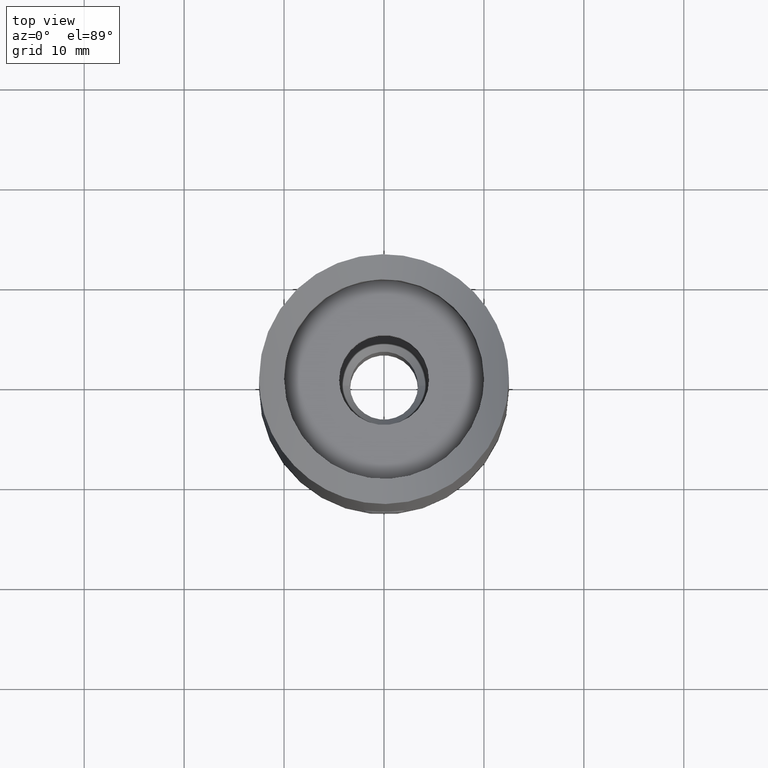
[diagram: clean part render]
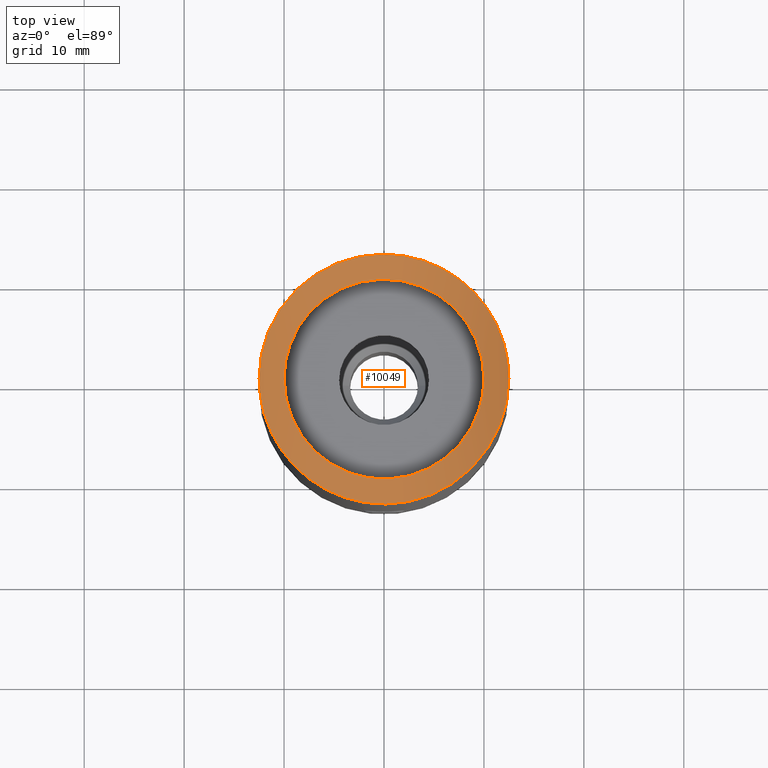
[diagram: same view with one face highlighted and labeled with its STEP entity id]
A machine part, top view. The second image highlights one B-rep face of the part: STEP entity #10049.
In plain terms, the highlighted cylindrical surface (partial cylindrical patch) has radius 21.2 mm, axis along (0, 1, 0).
Its self-contained STEP definition (entity closure, byte-faithful):
#54 = VERTEX_POINT ( 'NONE', #7113 ) ;
#113 = CARTESIAN_POINT ( 'NONE',  ( -9.478500886553067800, -3.254224513780860800, 7.234836316926856800 ) ) ;
#257 = ORIENTED_EDGE ( 'NONE', *, *, #8119, .F. ) ;
#331 = CARTESIAN_POINT ( 'NONE',  ( 10.00000000000000000, 6.541910431243391300E-016, 7.506685687123311200 ) ) ;
#597 = CARTESIAN_POINT ( 'NONE',  ( -0.8254145584992953500, -12.47977324621854600, 5.011946741441865200 ) ) ;
#645 = CARTESIAN_POINT ( 'NONE',  ( -7.657783215492891300, -9.887831381975154000, 6.428566676989436100 ) ) ;
#746 = CARTESIAN_POINT ( 'NONE',  ( -8.570666225862408900, -9.107812243117958700, 6.807232788485992900 ) ) ;
#764 = CARTESIAN_POINT ( 'NONE',  ( -0.8589641378155502500, 12.49923279307553300, 5.000452362454509200 ) ) ;
#810 = CARTESIAN_POINT ( 'NONE',  ( -4.161741894151727900, -9.098681388723358400, 5.410260176134897000 ) ) ;
#873 = CARTESIAN_POINT ( 'NONE',  ( -8.963013060748673800, 4.446319105920042400, 6.987167958370704000 ) ) ;
#899 = CARTESIAN_POINT ( 'NONE',  ( -12.41450283951434500, -1.679989969878693500, 9.013914764371319800 ) ) ;
#906 = CARTESIAN_POINT ( 'NONE',  ( -5.313340233650741600, -8.477801443946033200, 5.674750555498474300 ) ) ;
#926 = CARTESIAN_POINT ( 'NONE',  ( -10.00000000000000000, 1.224529867678464600E-015, 7.506685687123316500 ) ) ;
#1017 = CARTESIAN_POINT ( 'NONE',  ( 5.846561943196763700, 8.119340982846644300, 5.820201918539419600 ) ) ;
#1081 = CARTESIAN_POINT ( 'NONE',  ( -8.480909711439105400, -5.308310892497493300, 6.769293393294548300 ) ) ;
#1176 = CARTESIAN_POINT ( 'NONE',  ( -10.00000000000000000, 1.224529867678464600E-015, 7.506685687123316500 ) ) ;
#1338 = CARTESIAN_POINT ( 'NONE',  ( -0.6666569879782894300, -9.983277987278887300, 5.007902766920767400 ) ) ;
#1379 = CARTESIAN_POINT ( 'NONE',  ( -1.660045829272655900, -9.866830388938726800, 5.062570201656885000 ) ) ;
#1701 = CARTESIAN_POINT ( 'NONE',  ( 4.111227917153251500, -11.81195145108149300, 5.398513399234704300 ) ) ;
#1754 = CARTESIAN_POINT ( 'NONE',  ( -8.275886382900747400, -9.376596279630220500, 6.679218150928094600 ) ) ;
#1779 = CARTESIAN_POINT ( 'NONE',  ( 9.933031465423265900, 1.329849263782103100, 7.470440274762734300 ) ) ;
#1805 = CARTESIAN_POINT ( 'NONE',  ( -7.332818909338673300, -10.13134071192462400, 6.305368122057317700 ) ) ;
#1850 = CARTESIAN_POINT ( 'NONE',  ( 12.08501816055483500, -3.299599365158000000, 8.780668973257210300 ) ) ;
#1872 = CARTESIAN_POINT ( 'NONE',  ( 5.616086685430327700, 11.19739653768655300, 5.742685658978530200 ) ) ;
#1904 = CARTESIAN_POINT ( 'NONE',  ( -2.072732177878319400, -12.33395623446778800, 5.097583544234136200 ) ) ;
#1926 = CARTESIAN_POINT ( 'NONE',  ( 3.300318739173965000, 12.08511028713730100, 5.242380849323621000 ) ) ;
#1976 = CARTESIAN_POINT ( 'NONE',  ( -9.352466918338750500, 3.554810328995386300, 7.173947760992679600 ) ) ;
#2002 = CARTESIAN_POINT ( 'NONE',  ( -12.50000000000000000, 1.530791408019393000E-015, 9.077208171562666900 ) ) ;
#2025 = CARTESIAN_POINT ( 'NONE',  ( -5.622003884004051600, 11.19441611945893600, 5.744320868537759100 ) ) ;
#2069 = CARTESIAN_POINT ( 'NONE',  ( 7.677584592285628100, 9.897763553005122000, 6.426185435189047700 ) ) ;
#2074 = CARTESIAN_POINT ( 'NONE',  ( 6.607573212314526300, 7.512946934789661100, 6.054322668262596400 ) ) ;
#2124 = CARTESIAN_POINT ( 'NONE',  ( -7.943749023347947100, 6.108976910668620700, 6.540607031193800000 ) ) ;
#2281 = CARTESIAN_POINT ( 'NONE',  ( -9.097912455568701900, -4.163649602383443900, 7.050904927481713700 ) ) ;
#2312 = AXIS2_PLACEMENT_3D ( 'NONE', #7361, #5122, #9564 ) ;
#2449 = CARTESIAN_POINT ( 'NONE',  ( -1.327488730314914800, -9.917058262498736500, 5.039017264153548200 ) ) ;
#2498 = CARTESIAN_POINT ( 'NONE',  ( 7.534058560074438300, -6.607572267528164300, 6.377911961759056500 ) ) ;
#2590 = CARTESIAN_POINT ( 'NONE',  ( 5.311949827256865000, -8.478661680143668300, 5.674393634318701800 ) ) ;
#2629 = CARTESIAN_POINT ( 'NONE',  ( -5.033184300132312200, -8.647222391918639100, 5.604013365143524400 ) ) ;
#2860 = CARTESIAN_POINT ( 'NONE',  ( -4.476566234661104800, -11.67815006083307600, 5.474372074799599200 ) ) ;
#2958 = CARTESIAN_POINT ( 'NONE',  ( 12.50000000000000000, -2.044758162488406600E-017, 9.077208171562666900 ) ) ;
#3025 = CARTESIAN_POINT ( 'NONE',  ( 10.15490571586093300, 7.299856861454050400, 7.588624967614351600 ) ) ;
#3030 = CARTESIAN_POINT ( 'NONE',  ( 8.664294861225840800, 5.035088674796968500, 6.847353426485149400 ) ) ;
#3079 = CARTESIAN_POINT ( 'NONE',  ( 9.350011820299741300, 3.561452253127825900, 7.172732469166993100 ) ) ;
#3125 = CARTESIAN_POINT ( 'NONE',  ( -11.67712929274374800, 4.478832813254037100, 8.504802613424473600 ) ) ;
#3168 = CARTESIAN_POINT ( 'NONE',  ( -4.097214065288559600, 11.81672929809248600, 5.395795324141353400 ) ) ;
#3173 = CARTESIAN_POINT ( 'NONE',  ( 8.121024800386321000, 5.844184035675440600, 6.616137002574778800 ) ) ;
#3219 = CARTESIAN_POINT ( 'NONE',  ( 6.845595530139162200, 7.296640947458426400, 6.134212485046475600 ) ) ;
#3593 = CARTESIAN_POINT ( 'NONE',  ( 9.477245350095849100, -3.257122375513097400, 7.234233341201583100 ) ) ;
#3642 = CARTESIAN_POINT ( 'NONE',  ( 3.252533270004059200, -9.478951223627866800, 5.241967308880727000 ) ) ;
#3877 = CARTESIAN_POINT ( 'NONE',  ( -5.612463922427940200, -11.19935645945867400, 5.741616845213260800 ) ) ;
#3921 = CARTESIAN_POINT ( 'NONE',  ( -0.3997525628056106100, -12.50069499433881900, 4.999590215990475700 ) ) ;
#3968 = CARTESIAN_POINT ( 'NONE',  ( -6.325162137555068400, -10.81200791003522400, 5.953055371299342400 ) ) ;
#3994 = CARTESIAN_POINT ( 'NONE',  ( -6.614303266728305700, -7.527731097992622200, 6.052421245451372800 ) ) ;
#4034 = CARTESIAN_POINT ( 'NONE',  ( 1.669804141140359500, 12.41586680673746700, 5.049925334052112200 ) ) ;
#4041 = CARTESIAN_POINT ( 'NONE',  ( 10.00000000000000200, 0.6717252304569595300, 7.506685687123317400 ) ) ;
#4065 = CARTESIAN_POINT ( 'NONE',  ( 4.497950466487383300, -11.66982766874527000, 5.479057644836522900 ) ) ;
#4136 = CARTESIAN_POINT ( 'NONE',  ( -12.41440993766445000, 1.679475638683217000, 9.013857359421148600 ) ) ;
#4190 = CARTESIAN_POINT ( 'NONE',  ( -9.935038555233292700, 1.318941575521353400, 7.471491914981994500 ) ) ;
#4243 = CARTESIAN_POINT ( 'NONE',  ( -4.489506994984119500, 11.67314426038795900, 5.477192250028883400 ) ) ;
#4294 = CARTESIAN_POINT ( 'NONE',  ( 0.6705984451288042900, 9.999594512627529900, 5.000191267601144000 ) ) ;
#4344 = CARTESIAN_POINT ( 'NONE',  ( 5.035849835764238100, 8.663957215794193100, 5.599173753982681100 ) ) ;
#4358 = CARTESIAN_POINT ( 'NONE',  ( -8.121278425518974900, -5.843700094990300200, 6.616256090710106900 ) ) ;
#4548 = CARTESIAN_POINT ( 'NONE',  ( -9.867340187558424300, -1.656708844293380400, 7.436177374476308400 ) ) ;
#4646 = EDGE_CURVE ( 'NONE', #4847, #54, #9667, .T. ) ;
#4847 = VERTEX_POINT ( 'NONE', #9976 ) ;
#4991 = CARTESIAN_POINT ( 'NONE',  ( 1.690154089136584900, -12.41298781756334400, 5.051619729781943000 ) ) ;
#5043 = CARTESIAN_POINT ( 'NONE',  ( 9.921695963143252000, -7.646057704508287100, 7.457881125248741600 ) ) ;
#5087 = CARTESIAN_POINT ( 'NONE',  ( 2.909921039371525800, -12.16365822421952600, 5.196666650997594900 ) ) ;
#5122 = DIRECTION ( 'NONE',  ( -0.0000000000000000000, 1.000000000000000000, -0.0000000000000000000 ) ) ;
#5135 = CARTESIAN_POINT ( 'NONE',  ( -9.400507852522070000, -8.248663482543523900, 7.196003224771099700 ) ) ;
#5157 = CARTESIAN_POINT ( 'NONE',  ( -9.917886729184006700, 7.650612990462789800, 7.455915680248231100 ) ) ;
#5205 = CARTESIAN_POINT ( 'NONE',  ( 10.82385150507189300, 6.303516461398687400, 7.964161621337957800 ) ) ;
#5255 = CARTESIAN_POINT ( 'NONE',  ( -9.412360545666029300, 8.263981835864756300, 7.193905633885567100 ) ) ;
#5260 = CARTESIAN_POINT ( 'NONE',  ( -3.562254835665961600, 9.349811369862591100, 5.299140847941979300 ) ) ;
#5299 = CARTESIAN_POINT ( 'NONE',  ( -3.260343542439275900, -9.475998860987058200, 5.243290569952678800 ) ) ;
#5307 = CARTESIAN_POINT ( 'NONE',  ( 12.06465259715028900, 3.296395907968563900, 8.767095655883373700 ) ) ;
#5311 = CARTESIAN_POINT ( 'NONE',  ( -9.102309287502441400, 4.153706726334887000, 7.053008933654798100 ) ) ;
#5355 = CARTESIAN_POINT ( 'NONE',  ( 9.136534688933110700, 8.540058506059825300, 7.067315992079076500 ) ) ;
#5407 = CARTESIAN_POINT ( 'NONE',  ( -7.535515665379778100, 6.605298540180346100, 6.378589609123567400 ) ) ;
#5456 = CARTESIAN_POINT ( 'NONE',  ( -9.463329866915753300, 3.248527421069302700, 7.229048087174322600 ) ) ;
#5470 = CARTESIAN_POINT ( 'NONE',  ( -7.928678791465395100, -6.102531995524574700, 6.537222039249016300 ) ) ;
#5612 = CARTESIAN_POINT ( 'NONE',  ( -9.917343046521946100, -1.325803575734078000, 7.462665128519613100 ) ) ;
#5771 = CARTESIAN_POINT ( 'NONE',  ( 10.00000000000000000, -0.6707880294498723700, 7.506685687123315600 ) ) ;
#5799 = EDGE_CURVE ( 'NONE', #54, #4847, #10134, .T. ) ;
#5858 = CARTESIAN_POINT ( 'NONE',  ( 4.457566792296339600, -8.957528024720582800, 5.471817634834603300 ) ) ;
#5971 = CARTESIAN_POINT ( 'NONE',  ( -12.50000000000000000, 1.530791408019393000E-015, 9.077208171562666900 ) ) ;
#6141 = CARTESIAN_POINT ( 'NONE',  ( 12.41455994250099000, -1.677415078488688100, 9.013974898359009600 ) ) ;
#6162 = CARTESIAN_POINT ( 'NONE',  ( 10.00000000000000000, 6.541910431243391300E-016, 7.506685687123311200 ) ) ;
#6357 = CARTESIAN_POINT ( 'NONE',  ( 6.330762071407219700, 10.80890744331405900, 5.954741315298949900 ) ) ;
#6360 = CARTESIAN_POINT ( 'NONE',  ( 3.256384578239195800, 9.460734671739725600, 5.249152896575169300 ) ) ;
#6385 = CARTESIAN_POINT ( 'NONE',  ( -11.67547662238571400, -4.482977201973308300, 8.503719972888447400 ) ) ;
#6409 = CARTESIAN_POINT ( 'NONE',  ( -12.50000000000000500, 0.8471338255284911500, 9.077208171562492800 ) ) ;
#6411 = CARTESIAN_POINT ( 'NONE',  ( -3.249850724637522300, 9.462928728167646900, 5.248159784637767400 ) ) ;
#6438 = CARTESIAN_POINT ( 'NONE',  ( -12.06114128497305800, -3.309091052154643700, 8.764665499547451300 ) ) ;
#6460 = CARTESIAN_POINT ( 'NONE',  ( 11.67798937154660300, 4.476561059971743400, 8.505372729526113700 ) ) ;
#6514 = CARTESIAN_POINT ( 'NONE',  ( 7.925988879733638200, 6.105969849039951200, 6.536144706480203400 ) ) ;
#6560 = CARTESIAN_POINT ( 'NONE',  ( -2.300809935188174100, 9.737303294077429800, 5.122719851321512000 ) ) ;
#6576 = CARTESIAN_POINT ( 'NONE',  ( -8.956163715899565500, -4.460109451666560300, 6.983969486972087600 ) ) ;
#6947 = CARTESIAN_POINT ( 'NONE',  ( 9.098889911054369500, -4.161365014662666600, 7.051375415398915400 ) ) ;
#6987 = B_SPLINE_CURVE_WITH_KNOTS ( 'NONE', 3,
 ( #2958, #8371, #6141, #1850, #13906, #12910, #9626, #5043, #10610, #12962, #11809, #7232, #10749, #14097, #14046, #4065, #1701, #7422, #5087, #4991, #9481, #3921, #597, #13953, #1904, #7279, #10656, #8422, #2860, #3877, #3968, #1805, #645, #1754, #746, #9522, #5135, #9576, #11762, #12863, #13063, #6385, #13121, #6438, #7518, #899, #13219, #2002 ),
 .UNSPECIFIED., .F., .F.,
 ( 4, 2, 2, 2, 2, 2, 2, 2, 2, 2, 2, 2, 2, 2, 2, 2, 2, 2, 2, 2, 2, 2, 2, 4 ),
 ( 1.976632742456535400E-020, 0.002502947823133309100, 0.005005895646266618100, 0.007508843469399926300, 0.01001179129253323600, 0.01126326520409989000, 0.01251473911566654300, 0.01501768693879984200, 0.01626916085036649000, 0.01752063476193314200, 0.02002358258506644500, 0.02127505649663309300, 0.02252653040819974400, 0.02377800431976639600, 0.02502947823133304400, 0.02753242605446634300, 0.02878389996603299500, 0.03003537387759964300, 0.03128684778916628700, 0.03253832170073293200, 0.03504126952386622800, 0.03629274343543287300, 0.03754421734699951700, 0.04004716517013279900 ),
 .UNSPECIFIED. ) ;
#7113 = CARTESIAN_POINT ( 'NONE',  ( 10.00000000000000000, 6.541910431243391300E-016, 7.506685687123311200 ) ) ;
#7232 = CARTESIAN_POINT ( 'NONE',  ( 7.658181626422164700, -9.887565487340261000, 6.428706670570202100 ) ) ;
#7279 = CARTESIAN_POINT ( 'NONE',  ( -2.887341660598341100, -12.16905720300270800, 5.193537730289676800 ) ) ;
#7361 = CARTESIAN_POINT ( 'NONE',  ( 0.0000000000000000000, -12.50000000000000000, 26.19999999999999200 ) ) ;
#7396 = CARTESIAN_POINT ( 'NONE',  ( 12.47839444042782700, 0.8447536554562119500, 9.061377960056141500 ) ) ;
#7422 = CARTESIAN_POINT ( 'NONE',  ( 3.313708303092448600, -12.06000536283059100, 5.256662704558889800 ) ) ;
#7441 = CARTESIAN_POINT ( 'NONE',  ( -3.304356569119988300, 12.06248241720207800, 5.255231608921268300 ) ) ;
#7444 = CARTESIAN_POINT ( 'NONE',  ( 2.623699859661179400, 9.655347746035152700, 5.160555284920361500 ) ) ;
#7492 = CARTESIAN_POINT ( 'NONE',  ( 12.50000000000000400, 0.4234813879121445100, 9.077208171562670500 ) ) ;
#7496 = CARTESIAN_POINT ( 'NONE',  ( 7.299690919783572000, 6.842343147929482500, 6.294912227444076100 ) ) ;
#7518 = CARTESIAN_POINT ( 'NONE',  ( -12.16537212360689000, -2.902892153864682800, 8.837567200596009100 ) ) ;
#7543 = CARTESIAN_POINT ( 'NONE',  ( 12.39433659822115200, 1.674621401780844700, 9.000490892791585700 ) ) ;
#7547 = CARTESIAN_POINT ( 'NONE',  ( -6.626916684805027400, 7.516511185433398800, 6.056607001813697300 ) ) ;
#7641 = CARTESIAN_POINT ( 'NONE',  ( 9.656973254939389400, 2.617713629338934900, 7.326878716331544100 ) ) ;
#7710 = CARTESIAN_POINT ( 'NONE',  ( -10.00000000000000500, -0.3302339928304436900, 7.506685687123313900 ) ) ;
#7711 = FACE_BOUND ( 'NONE', #12032, .T. ) ;
#7859 = CARTESIAN_POINT ( 'NONE',  ( -8.647941348051487500, -5.031754690712050500, 6.843300704296791700 ) ) ;
#7926 = B_SPLINE_CURVE_WITH_KNOTS ( 'NONE', 3,
 ( #8537, #6409, #4136, #11829, #14116, #9852, #3125, #10922, #11876, #8584, #13144, #5157, #5255, #8682, #11925, #14212, #2025, #4243, #3168, #7441, #12022, #8728, #764, #9649, #4034, #1926, #13037, #1872, #6357, #2069, #12934, #5355, #9698, #14068, #3025, #5205, #11973, #6460, #12985, #5307, #14264, #10815, #7543, #7396, #7492, #10874 ),
 .UNSPECIFIED., .F., .F.,
 ( 4, 2, 2, 2, 2, 2, 2, 2, 2, 2, 2, 2, 2, 2, 2, 2, 2, 2, 2, 2, 2, 2, 4 ),
 ( 0.04004716517013279900, 0.04254536742155978100, 0.04379446854727327100, 0.04504356967298676200, 0.04629267079870024600, 0.04754177192441373700, 0.05003997417584071800, 0.05253817642726769200, 0.05503637867869467400, 0.05628547980440816400, 0.05753458093012164800, 0.06003278318154862300, 0.06253098543297559700, 0.06502918768440257800, 0.06752738993582954600, 0.07002559218725652700, 0.07127469331297001100, 0.07252379443868350900, 0.07502199669011047600, 0.07627109781582394600, 0.07752019894153744400, 0.07876930006725092700, 0.08001840119296441100 ),
 .UNSPECIFIED. ) ;
#7940 = CARTESIAN_POINT ( 'NONE',  ( 1.647510907723121600, -9.868951408880581900, 5.061579359753354300 ) ) ;
#8119 = EDGE_CURVE ( 'NONE', #13697, #9612, #6987, .T. ) ;
#8371 = CARTESIAN_POINT ( 'NONE',  ( 12.50000000000000000, -0.8485716618073886300, 9.077208171562670500 ) ) ;
#8422 = CARTESIAN_POINT ( 'NONE',  ( -4.084322186922481300, -11.82121978265570700, 5.393243481729315100 ) ) ;
#8537 = CARTESIAN_POINT ( 'NONE',  ( -12.50000000000000000, 1.530791408019393000E-015, 9.077208171562666900 ) ) ;
#8584 = CARTESIAN_POINT ( 'NONE',  ( -10.80199183774451300, 6.303179214469232700, 7.956988026750454200 ) ) ;
#8638 = CARTESIAN_POINT ( 'NONE',  ( -0.3261879860930312900, 10.00019997653164700, 4.999905671460922500 ) ) ;
#8682 = CARTESIAN_POINT ( 'NONE',  ( -8.285911549510649000, 9.393061088846344800, 6.676480238211571100 ) ) ;
#8685 = CARTESIAN_POINT ( 'NONE',  ( -5.045540049684615400, 8.658100728389458200, 5.601619553060958300 ) ) ;
#8728 = CARTESIAN_POINT ( 'NONE',  ( -1.687412625807631400, 12.41318755116838400, 5.051497986041627400 ) ) ;
#8782 = CARTESIAN_POINT ( 'NONE',  ( 3.564516780509356900, 9.348813364254597900, 5.299579758461828900 ) ) ;
#8942 = CARTESIAN_POINT ( 'NONE',  ( -9.983684591768959400, -0.6614304165228293000, 7.497929174541464000 ) ) ;
#9059 = CARTESIAN_POINT ( 'NONE',  ( 9.669333927575726400, -2.633854768632893300, 7.332944759282390200 ) ) ;
#9156 = CARTESIAN_POINT ( 'NONE',  ( -2.635645876970034600, -9.669216469222927700, 5.154332195155081600 ) ) ;
#9250 = CARTESIAN_POINT ( 'NONE',  ( 2.625120670453816800, -9.672162006149738600, 5.152976008807252500 ) ) ;
#9481 = CARTESIAN_POINT ( 'NONE',  ( 0.8630191910266018500, -12.49855622413039000, 5.000851282150399900 ) ) ;
#9514 = CARTESIAN_POINT ( 'NONE',  ( -4.456222113175145200, -8.958207620525794100, 5.471524558223444000 ) ) ;
#9522 = CARTESIAN_POINT ( 'NONE',  ( -9.132977711352266300, -8.543844657703626700, 7.065621050082285100 ) ) ;
#9564 = DIRECTION ( 'NONE',  ( 0.0000000000000000000, 0.0000000000000000000, 1.000000000000000000 ) ) ;
#9576 = CARTESIAN_POINT ( 'NONE',  ( -9.908645367881296900, -7.630776114337299600, 7.455929249711950000 ) ) ;
#9612 = VERTEX_POINT ( 'NONE', #5971 ) ;
#9626 = CARTESIAN_POINT ( 'NONE',  ( 10.82311573601574200, -6.305744600801085100, 7.963573911942920500 ) ) ;
#9649 = CARTESIAN_POINT ( 'NONE',  ( 0.8364876894773548600, 12.50075710310782800, 4.999553594983742000 ) ) ;
#9667 = B_SPLINE_CURVE_WITH_KNOTS ( 'NONE', 3,
 ( #1176, #7710, #8942, #5612, #4548, #13458, #113, #2281, #6576, #7859, #1081, #4358, #5470, #13262, #10348, #3994, #12077, #906, #2629, #9514, #810, #5299, #9156, #1379, #2449, #1338, #10324, #12396, #10370, #7940, #9250, #3642, #13623, #5858, #11484, #2590, #13578, #13528, #2498, #10282, #12444, #11438, #12486, #6947, #3593, #9059, #11392, #5771, #331 ),
 .UNSPECIFIED., .F., .F.,
 ( 4, 2, 2, 2, 2, 2, 2, 2, 2, 2, 2, 2, 2, 1, 2, 2, 2, 2, 2, 2, 2, 2, 2, 2, 4 ),
 ( 0.03174031370945279400, 0.03273081462048010200, 0.03372131553150740200, 0.03570231735356201000, 0.03669281826458931800, 0.03768331917561661800, 0.03867382008664391900, 0.03966432099767122600, 0.04164532281972582700, 0.04263582373075312800, 0.04362632464178042800, 0.04560732646383503000, 0.04659782737486233000, 0.04758832828588963100, 0.04857882919691693100, 0.04956933010794423200, 0.05155033192999883300, 0.05254083284102613300, 0.05353133375205342000, 0.05551233557410801400, 0.05749333739616260800, 0.05848383830718990900, 0.05947433921821720200, 0.06145534104027179600, 0.06343634286232639800 ),
 .UNSPECIFIED. ) ;
#9698 = CARTESIAN_POINT ( 'NONE',  ( 9.404630617369024400, 8.244042790606316700, 7.198028158581684500 ) ) ;
#9755 = CARTESIAN_POINT ( 'NONE',  ( 7.515763318024770700, 6.604352297271823600, 6.375726836184354900 ) ) ;
#9804 = CARTESIAN_POINT ( 'NONE',  ( -9.655830996760572700, 2.621539688331370000, 7.326299874937038000 ) ) ;
#9852 = CARTESIAN_POINT ( 'NONE',  ( -11.81777214489814500, 4.094131579675014600, 8.598799217440154400 ) ) ;
#9855 = CARTESIAN_POINT ( 'NONE',  ( -1.654134694578879500, 9.867757608033452100, 5.062135792944278700 ) ) ;
#9902 = CARTESIAN_POINT ( 'NONE',  ( -8.486879599133187600, 5.298920789186500000, 6.771886484226287800 ) ) ;
#9976 = CARTESIAN_POINT ( 'NONE',  ( -10.00000000000000000, 1.224529867678464600E-015, 7.506685687123316500 ) ) ;
#10049 = ADVANCED_FACE ( 'NONE', ( #14329, #7711 ), #10338, .F. ) ;
#10134 = B_SPLINE_CURVE_WITH_KNOTS ( 'NONE', 3,
 ( #6162, #4041, #1779, #14312, #7641, #13042, #3079, #13200, #3030, #3173, #6514, #9755, #7496, #3219, #2074, #11928, #1017, #4344, #10978, #8782, #6360, #7444, #10877, #12117, #4294, #8638, #10819, #12076, #9855, #6560, #10926, #6411, #5260, #14168, #8685, #11978, #7547, #5407, #2124, #9902, #11021, #873, #5311, #1976, #5456, #9804, #14218, #4190, #13094, #926 ),
 .UNSPECIFIED., .F., .F.,
 ( 4, 2, 2, 2, 2, 2, 2, 2, 2, 2, 2, 2, 2, 2, 2, 2, 2, 2, 2, 2, 2, 2, 2, 2, 4 ),
 ( 9.794418548640560900E-019, 0.001983769606840795700, 0.002975654410261193400, 0.003967539213681590600, 0.005951308820522385900, 0.006943193623942783100, 0.007935078427363181200, 0.008926963230783579300, 0.009918848034203975700, 0.01190261764104477500, 0.01289450244446517500, 0.01388638724788557500, 0.01587015685472637300, 0.01686204165814677100, 0.01785392646156717600, 0.01884581126498757400, 0.01983769606840797600, 0.02182146567524877900, 0.02380523528208957800, 0.02578900488893038100, 0.02678088969235078000, 0.02777277449577118500, 0.02876465929919158300, 0.02975654410261198400, 0.03174031370945279400 ),
 .UNSPECIFIED. ) ;
#10282 = CARTESIAN_POINT ( 'NONE',  ( 7.941764151823389500, -6.110875204756366600, 6.539873120546872100 ) ) ;
#10324 = CARTESIAN_POINT ( 'NONE',  ( -0.005900601720625625300, -10.01632632320056800, 4.992283919191242700 ) ) ;
#10338 = CYLINDRICAL_SURFACE ( 'NONE', #2312, 21.19999999999999900 ) ;
#10348 = CARTESIAN_POINT ( 'NONE',  ( -7.298273202315559900, -6.843912920350976300, 6.294380376182438400 ) ) ;
#10358 = EDGE_CURVE ( 'NONE', #9612, #13697, #7926, .T. ) ;
#10370 = CARTESIAN_POINT ( 'NONE',  ( 1.315239574759866600, -9.918683846070473800, 5.038254877941757700 ) ) ;
#10610 = CARTESIAN_POINT ( 'NONE',  ( 9.415575042610409900, -8.260170238301588700, 7.195545307325294200 ) ) ;
#10656 = CARTESIAN_POINT ( 'NONE',  ( -3.289639034843824900, -12.06653222333863700, 5.252898063034621100 ) ) ;
#10749 = CARTESIAN_POINT ( 'NONE',  ( 7.333175704000699300, -10.13097365662281600, 6.305543135158881500 ) ) ;
#10815 = CARTESIAN_POINT ( 'NONE',  ( 12.33187756241081000, 2.084699858219270000, 8.955435823175230700 ) ) ;
#10819 = CARTESIAN_POINT ( 'NONE',  ( -0.6626974303682187100, 9.983592460726143300, 5.007754707594720000 ) ) ;
#10874 = CARTESIAN_POINT ( 'NONE',  ( 12.50000000000000000, -2.044758162488406600E-017, 9.077208171562666900 ) ) ;
#10877 = CARTESIAN_POINT ( 'NONE',  ( 2.299476241532090600, 9.737646862723488900, 5.122561354893148800 ) ) ;
#10922 = CARTESIAN_POINT ( 'NONE',  ( -11.36141052027945600, 5.228158650827131400, 8.300455032068361700 ) ) ;
#10926 = CARTESIAN_POINT ( 'NONE',  ( -2.619930681521460200, 9.656319851311369700, 5.160106906960775700 ) ) ;
#10978 = CARTESIAN_POINT ( 'NONE',  ( 4.465734409724866800, 8.971152711585716600, 5.466678973509250000 ) ) ;
#11021 = CARTESIAN_POINT ( 'NONE',  ( -8.655806976530286100, 5.018203095119862000, 6.846821352241430100 ) ) ;
#11392 = CARTESIAN_POINT ( 'NONE',  ( 9.931136380216734900, -1.343778159799062600, 7.469428138554000900 ) ) ;
#11438 = CARTESIAN_POINT ( 'NONE',  ( 8.647454051136154600, -5.032659886040782700, 6.843078212451467300 ) ) ;
#11484 = CARTESIAN_POINT ( 'NONE',  ( 5.033982531416591600, -8.646746781005580500, 5.604212427179937200 ) ) ;
#11762 = CARTESIAN_POINT ( 'NONE',  ( -10.15029678505970500, -7.306357179505563500, 7.586093745295868600 ) ) ;
#11798 = ORIENTED_EDGE ( 'NONE', *, *, #4646, .F. ) ;
#11809 = CARTESIAN_POINT ( 'NONE',  ( 8.277841407775236200, -9.374915397881407500, 6.680032598148455000 ) ) ;
#11829 = CARTESIAN_POINT ( 'NONE',  ( -12.16629048457322100, 2.898866843321907400, 8.838213107929833600 ) ) ;
#11876 = CARTESIAN_POINT ( 'NONE',  ( -11.18632767022865000, 5.592778301228559500, 8.190097535713791300 ) ) ;
#11925 = CARTESIAN_POINT ( 'NONE',  ( -7.659400604678975100, 9.910966035266705300, 6.419461113605383900 ) ) ;
#11928 = CARTESIAN_POINT ( 'NONE',  ( 6.108807100476067100, 7.923816707258887400, 5.897517030674601200 ) ) ;
#11973 = CARTESIAN_POINT ( 'NONE',  ( 11.20502636231349500, 5.599778831552457700, 8.199209344262881100 ) ) ;
#11978 = CARTESIAN_POINT ( 'NONE',  ( -6.121081904261160400, 7.934263603967044900, 5.895244208532362000 ) ) ;
#12022 = CARTESIAN_POINT ( 'NONE',  ( -2.903471688877074200, 12.16515510749630700, 5.195798590450440500 ) ) ;
#12032 = EDGE_LOOP ( 'NONE', ( #13526, #11798 ) ) ;
#12076 = CARTESIAN_POINT ( 'NONE',  ( -1.326580982506482000, 9.917230924150985100, 5.038936432340113600 ) ) ;
#12077 = CARTESIAN_POINT ( 'NONE',  ( -6.118772684807887600, -7.935957905487497600, 5.894571720305541400 ) ) ;
#12117 = CARTESIAN_POINT ( 'NONE',  ( 1.326946331403829000, 9.933611783610764700, 5.031550441092057300 ) ) ;
#12396 = CARTESIAN_POINT ( 'NONE',  ( 0.6547071020388121100, -9.984062449116285300, 5.007532697665658000 ) ) ;
#12444 = CARTESIAN_POINT ( 'NONE',  ( 8.480246047843051500, -5.309334268141882700, 6.769007265250491100 ) ) ;
#12486 = CARTESIAN_POINT ( 'NONE',  ( 8.956670775266832900, -4.459167603774970300, 6.984200998156150100 ) ) ;
#12863 = CARTESIAN_POINT ( 'NONE',  ( -10.82258051932905800, -6.306129648196454200, 7.963337080554833100 ) ) ;
#12910 = CARTESIAN_POINT ( 'NONE',  ( 11.20589920001390800, -5.598114649539275500, 8.199750567203272700 ) ) ;
#12934 = CARTESIAN_POINT ( 'NONE',  ( 8.292590753440121500, 9.387140151929690600, 6.679334220573248400 ) ) ;
#12962 = CARTESIAN_POINT ( 'NONE',  ( 8.572815172963563800, -9.105778739206956000, 6.808186575323994700 ) ) ;
#12985 = CARTESIAN_POINT ( 'NONE',  ( 11.81956933681401800, 4.088991191509610900, 8.600006339396268000 ) ) ;
#13037 = CARTESIAN_POINT ( 'NONE',  ( 4.105477495173047900, 11.83499782074716900, 5.386850448760566400 ) ) ;
#13042 = CARTESIAN_POINT ( 'NONE',  ( 9.462736705271058900, 3.250564741480664700, 7.228746654967949300 ) ) ;
#13063 = CARTESIAN_POINT ( 'NONE',  ( -11.20374543612778400, -5.601914317052427700, 8.198433045044790600 ) ) ;
#13094 = CARTESIAN_POINT ( 'NONE',  ( -9.999999999999998200, 0.6613907678724668700, 7.506685687123313000 ) ) ;
#13101 = CARTESIAN_POINT ( 'NONE',  ( 12.50000000000000000, -2.044758162488406600E-017, 9.077208171562666900 ) ) ;
#13113 = ORIENTED_EDGE ( 'NONE', *, *, #10358, .F. ) ;
#13121 = CARTESIAN_POINT ( 'NONE',  ( -11.81590080567547800, -4.099475678421445200, 8.597542603682010000 ) ) ;
#13144 = CARTESIAN_POINT ( 'NONE',  ( -10.59165592776845500, 6.650444630508388900, 7.833641671591785800 ) ) ;
#13200 = CARTESIAN_POINT ( 'NONE',  ( 8.971552488757836800, 4.465187421114544400, 6.989852450852702700 ) ) ;
#13219 = CARTESIAN_POINT ( 'NONE',  ( -12.50000000000000900, -0.8487430364366530500, 9.077208171562487500 ) ) ;
#13262 = CARTESIAN_POINT ( 'NONE',  ( -7.517288973052980200, -6.602666933160452200, 6.376298251647249900 ) ) ;
#13458 = CARTESIAN_POINT ( 'NONE',  ( -9.671107808098847500, -2.627930754641614200, 7.333854623675514400 ) ) ;
#13526 = ORIENTED_EDGE ( 'NONE', *, *, #5799, .F. ) ;
#13528 = CARTESIAN_POINT ( 'NONE',  ( 6.615812600365252600, -7.526823585954869800, 6.052835529056354200 ) ) ;
#13578 = CARTESIAN_POINT ( 'NONE',  ( 6.116767126112326200, -7.937456729925216300, 5.893979451658343500 ) ) ;
#13623 = CARTESIAN_POINT ( 'NONE',  ( 4.159494470282026200, -9.099779008019542200, 5.409782769525461000 ) ) ;
#13697 = VERTEX_POINT ( 'NONE', #13101 ) ;
#13906 = CARTESIAN_POINT ( 'NONE',  ( 11.83666578411301500, -4.099317946374345200, 8.608112675469428200 ) ) ;
#13953 = CARTESIAN_POINT ( 'NONE',  ( -1.660420830508484900, -12.39633220497209200, 5.060986003446327400 ) ) ;
#14046 = CARTESIAN_POINT ( 'NONE',  ( 5.624990575222190300, -11.19264159604016000, 5.745281156452233700 ) ) ;
#14068 = CARTESIAN_POINT ( 'NONE',  ( 9.914473190374433600, 7.623289312353914900, 7.458995964235106700 ) ) ;
#14097 = CARTESIAN_POINT ( 'NONE',  ( 6.332477147048829900, -10.80731723092418400, 5.955513032107145200 ) ) ;
#14116 = CARTESIAN_POINT ( 'NONE',  ( -12.06293509169512000, 3.302612425637191600, 8.765906836595538800 ) ) ;
#14168 = CARTESIAN_POINT ( 'NONE',  ( -4.474147317672589900, 8.967526662615080500, 5.468278001735262400 ) ) ;
#14212 = CARTESIAN_POINT ( 'NONE',  ( -6.329542528444980200, 10.80881847177448100, 5.954678870422123200 ) ) ;
#14218 = CARTESIAN_POINT ( 'NONE',  ( -9.737742323754268600, 2.299461660817066800, 7.368593361559412400 ) ) ;
#14231 = EDGE_LOOP ( 'NONE', ( #257, #13113 ) ) ;
#14264 = CARTESIAN_POINT ( 'NONE',  ( 12.16703553193700300, 2.895587000546334900, 8.838737251354622500 ) ) ;
#14312 = CARTESIAN_POINT ( 'NONE',  ( 9.737916628138490800, 2.298125982793712400, 7.368686712233691900 ) ) ;
#14329 = FACE_OUTER_BOUND ( 'NONE', #14231, .T. ) ;